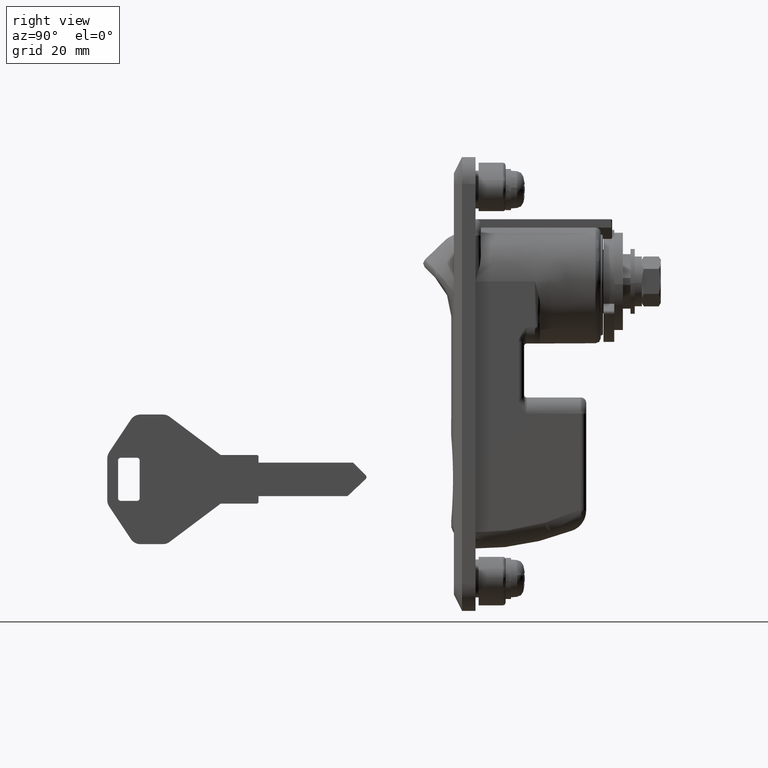
[diagram: clean part render]
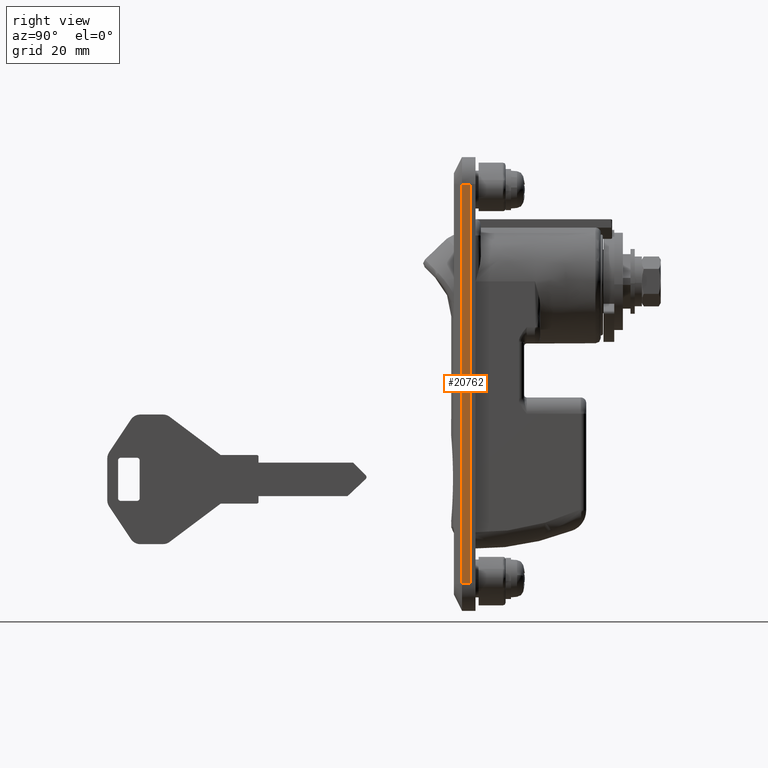
[diagram: same view with one face highlighted and labeled with its STEP entity id]
A machine part, right view. The second image highlights one B-rep face of the part: STEP entity #20762.
In plain terms, the highlighted face is a freeform B-spline surface patch.
Its self-contained STEP definition (entity closure, byte-faithful):
#19624=CARTESIAN_POINT('',(-1.499999999999946,-14.0,18.0));
#19625=VERTEX_POINT('',#19624);
#19696=CARTESIAN_POINT('',(-1.499999999999946,-14.0,-56.0));
#19697=VERTEX_POINT('',#19696);
#19703=CARTESIAN_POINT('',(-1.499999999999946,-14.0,18.0));
#19704=CARTESIAN_POINT('',(-1.499999999999946,-14.0,-56.0));
#19705=QUASI_UNIFORM_CURVE('',1,(#19703,#19704),.UNSPECIFIED.,.F.,.U.);
#19706=EDGE_CURVE('',#19625,#19697,#19705,.T.);
#20718=CARTESIAN_POINT('',(0.0,-14.0,18.0));
#20719=VERTEX_POINT('',#20718);
#20720=CARTESIAN_POINT('',(-1.499999999999946,-14.0,18.0));
#20721=CARTESIAN_POINT('',(0.0,-14.0,18.0));
#20722=QUASI_UNIFORM_CURVE('',1,(#20720,#20721),.UNSPECIFIED.,.F.,.U.);
#20723=EDGE_CURVE('',#19625,#20719,#20722,.T.);
#20741=CARTESIAN_POINT('',(-1.574924997092652,-14.0,-59.696299856573653));
#20742=CARTESIAN_POINT('',(-1.574924997092652,-14.0,21.696301841408310));
#20743=CARTESIAN_POINT('',(0.074925037325841,-14.0,-59.696299856573653));
#20744=CARTESIAN_POINT('',(0.074925037325841,-14.0,21.696301841408310));
#20745=B_SPLINE_SURFACE_WITH_KNOTS('',1,1,((#20741,#20743),(#20742,#20744)),.UNSPECIFIED.,.F.,.F.,.U.,(2,2),(2,2),(0.0,81.392601697981945),(0.041708334948495,0.958291687403247),.UNSPECIFIED.);
#20746=ORIENTED_EDGE('',*,*,#20723,.F.);
#20747=ORIENTED_EDGE('',*,*,#19706,.T.);
#20748=CARTESIAN_POINT('',(0.0,-14.0,-56.0));
#20749=VERTEX_POINT('',#20748);
#20750=CARTESIAN_POINT('',(-1.499999999999946,-14.0,-56.0));
#20751=CARTESIAN_POINT('',(0.0,-14.0,-56.0));
#20752=QUASI_UNIFORM_CURVE('',1,(#20750,#20751),.UNSPECIFIED.,.F.,.U.);
#20753=EDGE_CURVE('',#19697,#20749,#20752,.T.);
#20754=ORIENTED_EDGE('',*,*,#20753,.T.);
#20755=CARTESIAN_POINT('',(0.0,-14.0,-56.0));
#20756=CARTESIAN_POINT('',(0.0,-14.0,18.0));
#20757=QUASI_UNIFORM_CURVE('',1,(#20755,#20756),.UNSPECIFIED.,.F.,.U.);
#20758=EDGE_CURVE('',#20749,#20719,#20757,.T.);
#20759=ORIENTED_EDGE('',*,*,#20758,.T.);
#20760=EDGE_LOOP('',(#20746,#20747,#20754,#20759));
#20761=FACE_OUTER_BOUND('',#20760,.T.);
#20762=ADVANCED_FACE('',(#20761),#20745,.F.);